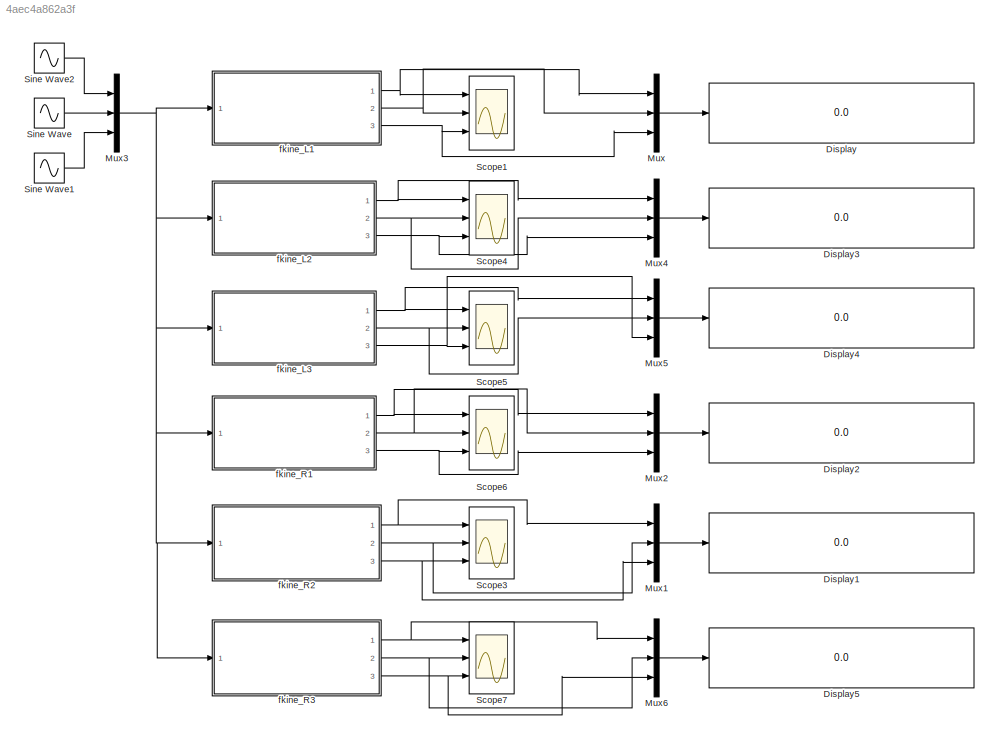
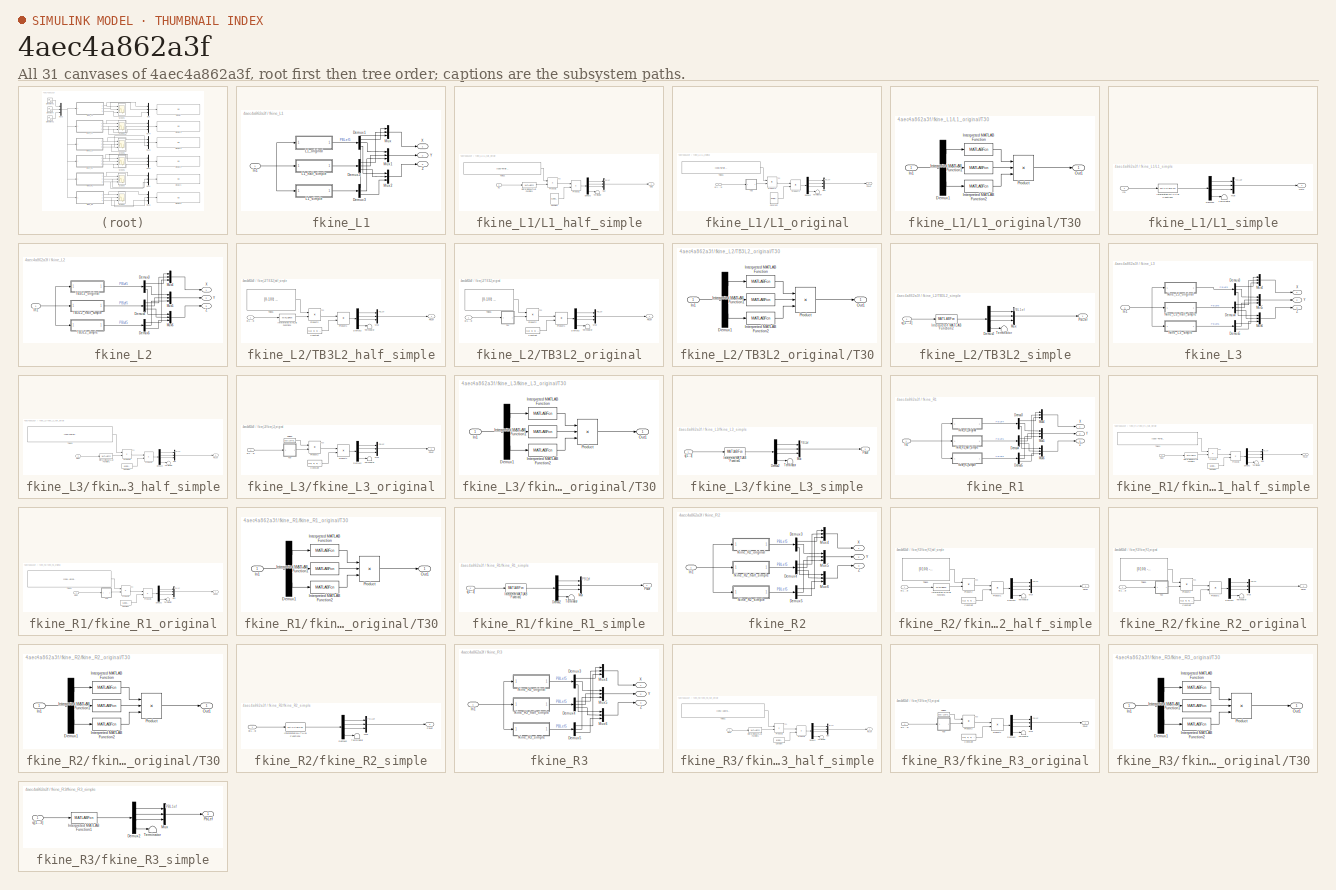
[diagram: thumbnail index - all 31 canvases of the model, root first then tree order]
MODEL slx_4aec4a862a3f
KIND model
CONFIG AbsTol = auto
CONFIG EnableMultiTasking = off
CONFIG FixedStep = 0.01
CONFIG InitFcn = runfirst
CONFIG MaxStep = auto
CONFIG MinStep = auto
CONFIG RelTol = 1e-3
CONFIG SampleTimeConstraint = Unconstrained
CONFIG Solver = FixedStepAuto
CONFIG SolverName = FixedStepAuto
CONFIG StartTime = 0.0
CONFIG StopTime = 30
BLOCK [Display] Display
  Decimation = 1
  Ports = [1]
BLOCK [Display] Display1
  Decimation = 1
  Ports = [1]
BLOCK [Display] Display2
  Decimation = 1
  Ports = [1]
BLOCK [Display] Display3
  Decimation = 1
  Ports = [1]
BLOCK [Display] Display4
  Decimation = 1
  Ports = [1]
BLOCK [Display] Display5
  Decimation = 1
  Ports = [1]
BLOCK [Mux] Mux
  DisplayOption = bar
  Inputs = 3
  Ports = [3, 1]
BLOCK [Mux] Mux1
  DisplayOption = bar
  Inputs = 3
  Ports = [3, 1]
BLOCK [Mux] Mux2
  DisplayOption = bar
  Inputs = 3
  Ports = [3, 1]
BLOCK [Mux] Mux3
  DisplayOption = bar
  Inputs = 3
  Ports = [3, 1]
BLOCK [Mux] Mux4
  DisplayOption = bar
  Inputs = 3
  Ports = [3, 1]
BLOCK [Mux] Mux5
  DisplayOption = bar
  Inputs = 3
  Ports = [3, 1]
BLOCK [Mux] Mux6
  DisplayOption = bar
  Inputs = 3
  Ports = [3, 1]
BLOCK [Scope] Scope1
  Floating = off
  NumInputPorts = 3
  Ports = [3]
  ScopeSpecificationString = Simulink.scopes.TimeScopeBlockCfg('CurrentConfiguration', extmgr.ConfigurationSet(extmgr.Configuration('Core','General UI',true,'FigureColor',[0.831372549019608 0.815686274509804 0.784313725490196]),extmgr.Configuration('Core','Source UI',true),extmgr.Configuration('Sources','WiredSimulink',true,'DataLoggingVariableName','ScopeData1','DataLoggingSaveFormat','Array','DataLoggingDecimation','1','Dat...<+5367ch>
BLOCK [Scope] Scope3
  Floating = off
  NumInputPorts = 3
  Ports = [3]
  ScopeSpecificationString = Simulink.scopes.TimeScopeBlockCfg('CurrentConfiguration', extmgr.ConfigurationSet(extmgr.Configuration('Core','General UI',true,'FigureColor',[0.831372549019608 0.815686274509804 0.784313725490196]),extmgr.Configuration('Core','Source UI',true),extmgr.Configuration('Sources','WiredSimulink',true,'DataLoggingVariableName','ScopeData2','DataLoggingSaveFormat','Array','DataLoggingDecimation','1','Dat...<+5367ch>
BLOCK [Scope] Scope4
  Floating = off
  NumInputPorts = 3
  Ports = [3]
  ScopeSpecificationString = Simulink.scopes.TimeScopeBlockCfg('CurrentConfiguration', extmgr.ConfigurationSet(extmgr.Configuration('Core','General UI',true,'FigureColor',[0.831372549019608 0.815686274509804 0.784313725490196]),extmgr.Configuration('Core','Source UI',true),extmgr.Configuration('Sources','WiredSimulink',true,'DataLoggingVariableName','ScopeData3','DataLoggingSaveFormat','Array','DataLoggingDecimation','1','Dat...<+5367ch>
BLOCK [Scope] Scope5
  Floating = off
  NumInputPorts = 3
  Ports = [3]
  ScopeSpecificationString = Simulink.scopes.TimeScopeBlockCfg('CurrentConfiguration', extmgr.ConfigurationSet(extmgr.Configuration('Core','General UI',true,'FigureColor',[0.831372549019608 0.815686274509804 0.784313725490196]),extmgr.Configuration('Core','Source UI',true),extmgr.Configuration('Sources','WiredSimulink',true,'DataLoggingVariableName','ScopeData4','DataLoggingSaveFormat','Array','DataLoggingDecimation','1','Dat...<+5368ch>
BLOCK [Scope] Scope6
  Floating = off
  NumInputPorts = 3
  Ports = [3]
  ScopeSpecificationString = Simulink.scopes.TimeScopeBlockCfg('CurrentConfiguration', extmgr.ConfigurationSet(extmgr.Configuration('Core','General UI',true,'FigureColor',[0.831372549019608 0.815686274509804 0.784313725490196]),extmgr.Configuration('Core','Source UI',true),extmgr.Configuration('Sources','WiredSimulink',true,'DataLoggingVariableName','ScopeData5','DataLoggingSaveFormat','Array','DataLoggingDecimation','1','Dat...<+5367ch>
BLOCK [Scope] Scope7
  Floating = off
  NumInputPorts = 3
  Ports = [3]
  ScopeSpecificationString = Simulink.scopes.TimeScopeBlockCfg('CurrentConfiguration', extmgr.ConfigurationSet(extmgr.Configuration('Core','General UI',true,'FigureColor',[0.831372549019608 0.815686274509804 0.784313725490196]),extmgr.Configuration('Core','Source UI',true),extmgr.Configuration('Sources','WiredSimulink',true,'DataLoggingVariableName','ScopeData6','DataLoggingSaveFormat','Array','DataLoggingDecimation','1','Dat...<+5367ch>
BLOCK [Sin] Sine Wave
  Amplitude = 10
  Ports = [0, 1]
  SampleTime = 0
BLOCK [Sin] Sine Wave1
  Amplitude = 2.4
  Frequency = 1.7
  Ports = [0, 1]
  SampleTime = 0
BLOCK [Sin] Sine Wave2
  Amplitude = 3
  Frequency = 3.5
  Ports = [0, 1]
  SampleTime = 0
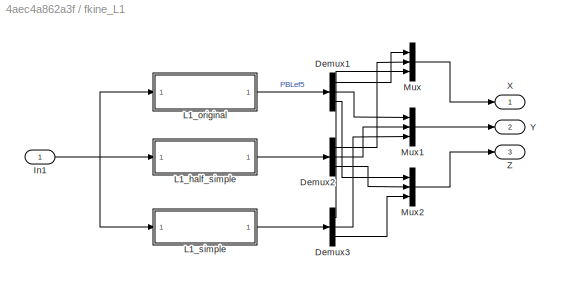
BLOCK [SubSystem] fkine_L1
  Ports = [1, 3]
  RequestExecContextInheritance = off
BLOCK [Demux] fkine_L1/Demux1
  Outputs = 3
  Ports = [1, 3]
BLOCK [Demux] fkine_L1/Demux2
  Outputs = 3
  Ports = [1, 3]
BLOCK [Demux] fkine_L1/Demux3
  Outputs = 3
  Ports = [1, 3]
BLOCK [Inport] fkine_L1/In1
BLOCK [SubSystem] fkine_L1/L1_half_simple
  Ports = [1, 1]
  RequestExecContextInheritance = off
BLOCK [Constant] fkine_L1/L1_half_simple/Constant
  Value = [L3; 0; 0; 1]
  VectorParams1D = off
BLOCK [Demux] fkine_L1/L1_half_simple/Demux2
  Ports = [1, 4]
BLOCK [Inport] fkine_L1/L1_half_simple/In1
BLOCK [MATLABFcn] fkine_L1/L1_half_simple/Interpreted MATLAB Function1
  MATLABFcn = [cos(u(2) - u(3))*cos(u(1)) sin(u(2) - u(3))*cos(u(1)) -sin(u(1)) cos(u(1))*(L1 + L2*cos(u(2))); cos(u(2) - u(3))*sin(u(1)) sin(u(2) - u(3))*sin(u(1)) cos(u(1)) sin(u(1))*(L1 + L2*cos(u(2))); sin(u(2) - u(3)) -cos(u(2) - u(3)) 0 L2*sin(u(2));0 0 0 1]  <repeated x6 — deduplicated; at blocks: Interpreted MATLAB Function1>
  Output1D = off
  Ports = [1, 1]
BLOCK [Mux] fkine_L1/L1_half_simple/Mux
  DisplayOption = bar
  Inputs = 3
  Ports = [3, 1]
BLOCK [Outport] fkine_L1/L1_half_simple/Out2
  VectorParamsAs1DForOutWhenUnconnected = off
BLOCK [Product] fkine_L1/L1_half_simple/Product1
  Multiplication = Matrix(*)
  Ports = [2, 1]
BLOCK [Product] fkine_L1/L1_half_simple/Product2
  Multiplication = Matrix(*)
  Ports = [2, 1]
BLOCK [Constant] fkine_L1/L1_half_simple/Tbleg1
  Value = [cos(45*pi/180) -sin(45*pi/180) 0 bL/2; sin(45*pi/180) cos(45*pi/180) 0 bWs/2; 0 0 1 0; 0 0 0 1]
  VectorParams1D = off
BLOCK [Terminator] fkine_L1/L1_half_simple/Terminator
BLOCK [SubSystem] fkine_L1/L1_original
  Ports = [1, 1]
  RequestExecContextInheritance = off
BLOCK [Constant] fkine_L1/L1_original/Constant
  Value = [L3; 0; 0; 1]
  VectorParams1D = off
BLOCK [Demux] fkine_L1/L1_original/Demux2
  Ports = [1, 4]
BLOCK [Mux] fkine_L1/L1_original/Mux
  DisplayOption = bar
  Inputs = 3
  Ports = [3, 1]
BLOCK [Outport] fkine_L1/L1_original/PbLef
  VectorParamsAs1DForOutWhenUnconnected = off
BLOCK [Product] fkine_L1/L1_original/Product1
  Multiplication = Matrix(*)
  Ports = [2, 1]
BLOCK [Product] fkine_L1/L1_original/Product2
  Multiplication = Matrix(*)
  Ports = [2, 1]
BLOCK [SubSystem] fkine_L1/L1_original/T30
  Ports = [1, 1]
  RequestExecContextInheritance = off
BLOCK [Demux] fkine_L1/L1_original/T30/Demux1
  Outputs = 3
  Ports = [1, 3]
BLOCK [Inport] fkine_L1/L1_original/T30/In1
BLOCK [MATLABFcn] fkine_L1/L1_original/T30/Interpreted MATLAB Function
  MATLABFcn = [cos(u) -sin(u) 0 0; sin(u) cos(u) 0 0; 0 0 1 d1; 0 0 0 1]
  Output1D = off
  Ports = [1, 1]
BLOCK [MATLABFcn] fkine_L1/L1_original/T30/Interpreted MATLAB Function1
  MATLABFcn = [cos(u) -sin(u) 0 L1; 0 0 -1 0; sin(u) cos(u) 0 -abs(d2); 0 0 0 1]
  Output1D = off
  Ports = [1, 1]
BLOCK [MATLABFcn] fkine_L1/L1_original/T30/Interpreted MATLAB Function2
  MATLABFcn = [cos(u) -sin(u) 0 L2; -sin(u) -cos(u) 0 0; 0 0 -1 0; 0 0 0 1]
  Output1D = off
  Ports = [1, 1]
BLOCK [Outport] fkine_L1/L1_original/T30/Out1
  VectorParamsAs1DForOutWhenUnconnected = off
BLOCK [Product] fkine_L1/L1_original/T30/Product
  Inputs = 3
  Multiplication = Matrix(*)
  Ports = [3, 1]
BLOCK [Constant] fkine_L1/L1_original/Tbleg1
  Value = [cos(45*pi/180) -sin(45*pi/180) 0 bL/2; sin(45*pi/180) cos(45*pi/180) 0 bWs/2; 0 0 1 0; 0 0 0 1]
  VectorParams1D = off
BLOCK [Terminator] fkine_L1/L1_original/Terminator
BLOCK [Inport] fkine_L1/L1_original/q[1...3]
BLOCK [SubSystem] fkine_L1/L1_simple
  Ports = [1, 1]
  RequestExecContextInheritance = off
BLOCK [Demux] fkine_L1/L1_simple/Demux2
  Ports = [1, 4]
BLOCK [Inport] fkine_L1/L1_simple/In1
BLOCK [MATLABFcn] fkine_L1/L1_simple/Interpreted MATLAB Function1
  MATLABFcn = [bL/2 + L3*((2^(1/2)*cos(u(2) - u(3))*cos(u(1)))/2 - (2^(1/2)*cos(u(2) - u(3))*sin(u(1)))/2) + (2^(1/2)*cos(u(1))*(L1 + L2*cos(u(2))))/2 - (2^(1/2)*sin(u(1))*(L1 + L2*cos(u(2))))/2; bWs/2 + L3*((2^(1/2)*cos(u(2) - u(3))*cos(u(1)))/2 + (2^(1/2)*cos(u(2) - u(3))*sin(u(1)))/2) + (2^(1/2)*cos(u(1))*(L1 + L2*cos(u(2))))/2 + (2^(1/2)*sin(u(1))*(L1 + L2*cos(u(2))))/2; L2*sin(u(2)) + L3*sin(u(2) - u(3));1...<+1ch>
  Output1D = off
  Ports = [1, 1]
BLOCK [Mux] fkine_L1/L1_simple/Mux
  DisplayOption = bar
  Inputs = 3
  Ports = [3, 1]
BLOCK [Outport] fkine_L1/L1_simple/Out2
  VectorParamsAs1DForOutWhenUnconnected = off
BLOCK [Terminator] fkine_L1/L1_simple/Terminator
BLOCK [Mux] fkine_L1/Mux
  DisplayOption = bar
  Inputs = 3
  Ports = [3, 1]
BLOCK [Mux] fkine_L1/Mux1
  DisplayOption = bar
  Inputs = 3
  Ports = [3, 1]
BLOCK [Mux] fkine_L1/Mux2
  DisplayOption = bar
  Inputs = 3
  Ports = [3, 1]
BLOCK [Outport] fkine_L1/X
  VectorParamsAs1DForOutWhenUnconnected = off
BLOCK [Outport] fkine_L1/Y
  Port = 2
  VectorParamsAs1DForOutWhenUnconnected = off
BLOCK [Outport] fkine_L1/Z
  Port = 3
  VectorParamsAs1DForOutWhenUnconnected = off
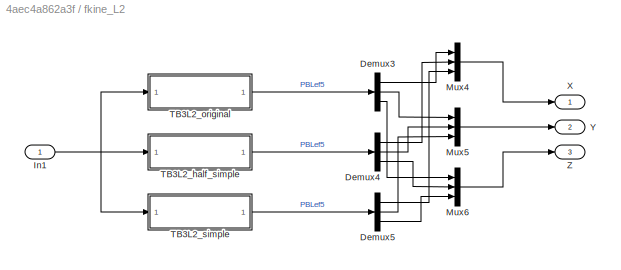
BLOCK [SubSystem] fkine_L2
  Ports = [1, 3]
  RequestExecContextInheritance = off
BLOCK [Demux] fkine_L2/Demux3
  Outputs = 3
  Ports = [1, 3]
BLOCK [Demux] fkine_L2/Demux4
  Outputs = 3
  Ports = [1, 3]
BLOCK [Demux] fkine_L2/Demux5
  Outputs = 3
  Ports = [1, 3]
BLOCK [Inport] fkine_L2/In1
BLOCK [Mux] fkine_L2/Mux4
  DisplayOption = bar
  Inputs = 3
  Ports = [3, 1]
BLOCK [Mux] fkine_L2/Mux5
  DisplayOption = bar
  Inputs = 3
  Ports = [3, 1]
BLOCK [Mux] fkine_L2/Mux6
  DisplayOption = bar
  Inputs = 3
  Ports = [3, 1]
BLOCK [SubSystem] fkine_L2/TB3L2_half_simple
  Ports = [1, 1]
  RequestExecContextInheritance = off
BLOCK [Constant] fkine_L2/TB3L2_half_simple/Constant
  Value = [L3; 0; 0; 1]
  VectorParams1D = off
BLOCK [Demux] fkine_L2/TB3L2_half_simple/Demux2
  Ports = [1, 4]
BLOCK [MATLABFcn] fkine_L2/TB3L2_half_simple/Interpreted MATLAB Function1
  Output1D = off
  Ports = [1, 1]
BLOCK [Mux] fkine_L2/TB3L2_half_simple/Mux
  DisplayOption = bar
  Inputs = 3
  Ports = [3, 1]
BLOCK [Outport] fkine_L2/TB3L2_half_simple/PbLef
  VectorParamsAs1DForOutWhenUnconnected = off
BLOCK [Product] fkine_L2/TB3L2_half_simple/Product1
  Multiplication = Matrix(*)
  Ports = [2, 1]
BLOCK [Product] fkine_L2/TB3L2_half_simple/Product2
  Multiplication = Matrix(*)
  Ports = [2, 1]
BLOCK [Constant] fkine_L2/TB3L2_half_simple/Tbleg1
  Value = [0 -1 0 0; 1 0 0 bWb/2; 0 0 1 0; 0 0 0 1]
  VectorParams1D = off
BLOCK [Terminator] fkine_L2/TB3L2_half_simple/Terminator
BLOCK [Inport] fkine_L2/TB3L2_half_simple/q[1...3]
BLOCK [SubSystem] fkine_L2/TB3L2_original
  Ports = [1, 1]
  RequestExecContextInheritance = off
BLOCK [Constant] fkine_L2/TB3L2_original/Constant
  Value = [L3; 0; 0; 1]
  VectorParams1D = off
BLOCK [Demux] fkine_L2/TB3L2_original/Demux2
  Ports = [1, 4]
BLOCK [Mux] fkine_L2/TB3L2_original/Mux
  DisplayOption = bar
  Inputs = 3
  Ports = [3, 1]
BLOCK [Outport] fkine_L2/TB3L2_original/PbLef
  VectorParamsAs1DForOutWhenUnconnected = off
BLOCK [Product] fkine_L2/TB3L2_original/Product1
  Multiplication = Matrix(*)
  Ports = [2, 1]
BLOCK [Product] fkine_L2/TB3L2_original/Product2
  Multiplication = Matrix(*)
  Ports = [2, 1]
BLOCK [SubSystem] fkine_L2/TB3L2_original/T30
  Ports = [1, 1]
  RequestExecContextInheritance = off
BLOCK [Demux] fkine_L2/TB3L2_original/T30/Demux1
  Outputs = 3
  Ports = [1, 3]
BLOCK [Inport] fkine_L2/TB3L2_original/T30/In1
BLOCK [MATLABFcn] fkine_L2/TB3L2_original/T30/Interpreted MATLAB Function
  MATLABFcn = [cos(u) -sin(u) 0 0; sin(u) cos(u) 0 0; 0 0 1 d1; 0 0 0 1]
  Output1D = off
  Ports = [1, 1]
BLOCK [MATLABFcn] fkine_L2/TB3L2_original/T30/Interpreted MATLAB Function1
  MATLABFcn = [cos(u) -sin(u) 0 L1; 0 0 -1 0; sin(u) cos(u) 0 -abs(d2); 0 0 0 1]
  Output1D = off
  Ports = [1, 1]
BLOCK [MATLABFcn] fkine_L2/TB3L2_original/T30/Interpreted MATLAB Function2
  MATLABFcn = [cos(u) -sin(u) 0 L2; -sin(u) -cos(u) 0 0; 0 0 -1 0; 0 0 0 1]
  Output1D = off
  Ports = [1, 1]
BLOCK [Outport] fkine_L2/TB3L2_original/T30/Out1
  VectorParamsAs1DForOutWhenUnconnected = off
BLOCK [Product] fkine_L2/TB3L2_original/T30/Product
  Inputs = 3
  Multiplication = Matrix(*)
  Ports = [3, 1]
BLOCK [Constant] fkine_L2/TB3L2_original/Tbleg1
  Value = [0 -1 0 0; 1 0 0 bWb/2; 0 0 1 0; 0 0 0 1]
  VectorParams1D = off
BLOCK [Terminator] fkine_L2/TB3L2_original/Terminator
BLOCK [Inport] fkine_L2/TB3L2_original/q[1...3]
BLOCK [SubSystem] fkine_L2/TB3L2_simple
  Ports = [1, 1]
  RequestExecContextInheritance = off
BLOCK [Demux] fkine_L2/TB3L2_simple/Demux2
  Ports = [1, 4]
BLOCK [MATLABFcn] fkine_L2/TB3L2_simple/Interpreted MATLAB Function2
  MATLABFcn = [-sin(u(1))*(L1 + L2*cos(u(2))) - L3*cos(u(2) - u(3))*sin(u(1)); bWb/2 + cos(u(1))*(L1 + L2*cos(u(2))) + L3*cos(u(2) - u(3))*cos(u(1));L2*sin(u(2))+L3*sin(u(2)-u(3));1]
  Output1D = off
  Ports = [1, 1]
BLOCK [Mux] fkine_L2/TB3L2_simple/Mux
  DisplayOption = bar
  Inputs = 3
  Ports = [3, 1]
BLOCK [Outport] fkine_L2/TB3L2_simple/PbLef
  VectorParamsAs1DForOutWhenUnconnected = off
BLOCK [Terminator] fkine_L2/TB3L2_simple/Terminator
BLOCK [Inport] fkine_L2/TB3L2_simple/q[1...3]
BLOCK [Outport] fkine_L2/X
  VectorParamsAs1DForOutWhenUnconnected = off
BLOCK [Outport] fkine_L2/Y
  Port = 2
  VectorParamsAs1DForOutWhenUnconnected = off
BLOCK [Outport] fkine_L2/Z
  Port = 3
  VectorParamsAs1DForOutWhenUnconnected = off
BLOCK [SubSystem] fkine_L3
  Ports = [1, 3]
  RequestExecContextInheritance = off
BLOCK [Demux] fkine_L3/Demux3
  Outputs = 3
  Ports = [1, 3]
BLOCK [Demux] fkine_L3/Demux4
  Outputs = 3
  Ports = [1, 3]
BLOCK [Demux] fkine_L3/Demux5
  Outputs = 3
  Ports = [1, 3]
BLOCK [Inport] fkine_L3/In1
BLOCK [Mux] fkine_L3/Mux4
  DisplayOption = bar
  Inputs = 3
  Ports = [3, 1]
BLOCK [Mux] fkine_L3/Mux5
  DisplayOption = bar
  Inputs = 3
  Ports = [3, 1]
BLOCK [Mux] fkine_L3/Mux6
  DisplayOption = bar
  Inputs = 3
  Ports = [3, 1]
BLOCK [Outport] fkine_L3/X
  VectorParamsAs1DForOutWhenUnconnected = off
BLOCK [Outport] fkine_L3/Y
  Port = 2
  VectorParamsAs1DForOutWhenUnconnected = off
BLOCK [Outport] fkine_L3/Z
  Port = 3
  VectorParamsAs1DForOutWhenUnconnected = off
BLOCK [SubSystem] fkine_L3/fkine_L3_half_simple
  Ports = [1, 1]
  RequestExecContextInheritance = off
BLOCK [Constant] fkine_L3/fkine_L3_half_simple/Constant
  Value = [L3; 0; 0; 1]
  VectorParams1D = off
BLOCK [Demux] fkine_L3/fkine_L3_half_simple/Demux2
  Ports = [1, 4]
BLOCK [MATLABFcn] fkine_L3/fkine_L3_half_simple/Interpreted MATLAB Function1
  Output1D = off
  Ports = [1, 1]
BLOCK [Mux] fkine_L3/fkine_L3_half_simple/Mux
  DisplayOption = bar
  Inputs = 3
  Ports = [3, 1]
BLOCK [Outport] fkine_L3/fkine_L3_half_simple/PbLef
  VectorParamsAs1DForOutWhenUnconnected = off
BLOCK [Product] fkine_L3/fkine_L3_half_simple/Product1
  Multiplication = Matrix(*)
  Ports = [2, 1]
BLOCK [Product] fkine_L3/fkine_L3_half_simple/Product2
  Multiplication = Matrix(*)
  Ports = [2, 1]
BLOCK [Constant] fkine_L3/fkine_L3_half_simple/Tbleg3
  Value = [cos(135*pi/180) -sin(135*pi/180) 0 -bL/2; sin(135*pi/180) cos(135*pi/180) 0 bWs/2; 0 0 1 0; 0 0 0 1]
  VectorParams1D = off
BLOCK [Terminator] fkine_L3/fkine_L3_half_simple/Terminator
BLOCK [Inport] fkine_L3/fkine_L3_half_simple/q[1...3]
BLOCK [SubSystem] fkine_L3/fkine_L3_original
  Ports = [1, 1]
  RequestExecContextInheritance = off
BLOCK [Constant] fkine_L3/fkine_L3_original/Constant
  Value = [L3; 0; 0; 1]
  VectorParams1D = off
BLOCK [Demux] fkine_L3/fkine_L3_original/Demux2
  Ports = [1, 4]
BLOCK [Mux] fkine_L3/fkine_L3_original/Mux
  DisplayOption = bar
  Inputs = 3
  Ports = [3, 1]
BLOCK [Outport] fkine_L3/fkine_L3_original/PbLef
  VectorParamsAs1DForOutWhenUnconnected = off
BLOCK [Product] fkine_L3/fkine_L3_original/Product1
  Multiplication = Matrix(*)
  Ports = [2, 1]
BLOCK [Product] fkine_L3/fkine_L3_original/Product2
  Multiplication = Matrix(*)
  Ports = [2, 1]
BLOCK [SubSystem] fkine_L3/fkine_L3_original/T30
  Ports = [1, 1]
  RequestExecContextInheritance = off
BLOCK [Demux] fkine_L3/fkine_L3_original/T30/Demux1
  Outputs = 3
  Ports = [1, 3]
BLOCK [Inport] fkine_L3/fkine_L3_original/T30/In1
BLOCK [MATLABFcn] fkine_L3/fkine_L3_original/T30/Interpreted MATLAB Function
  MATLABFcn = [cos(u) -sin(u) 0 0; sin(u) cos(u) 0 0; 0 0 1 d1; 0 0 0 1]
  Output1D = off
  Ports = [1, 1]
BLOCK [MATLABFcn] fkine_L3/fkine_L3_original/T30/Interpreted MATLAB Function1
  MATLABFcn = [cos(u) -sin(u) 0 L1; 0 0 -1 0; sin(u) cos(u) 0 -abs(d2); 0 0 0 1]
  Output1D = off
  Ports = [1, 1]
BLOCK [MATLABFcn] fkine_L3/fkine_L3_original/T30/Interpreted MATLAB Function2
  MATLABFcn = [cos(u) -sin(u) 0 L2; -sin(u) -cos(u) 0 0; 0 0 -1 0; 0 0 0 1]
  Output1D = off
  Ports = [1, 1]
BLOCK [Outport] fkine_L3/fkine_L3_original/T30/Out1
  VectorParamsAs1DForOutWhenUnconnected = off
BLOCK [Product] fkine_L3/fkine_L3_original/T30/Product
  Inputs = 3
  Multiplication = Matrix(*)
  Ports = [3, 1]
BLOCK [Constant] fkine_L3/fkine_L3_original/Tbleg3
  Value = [cos(135*pi/180) -sin(135*pi/180) 0 -bL/2; sin(135*pi/180) cos(135*pi/180) 0 bWs/2; 0 0 1 0; 0 0 0 1]
  VectorParams1D = off
BLOCK [Terminator] fkine_L3/fkine_L3_original/Terminator
BLOCK [Inport] fkine_L3/fkine_L3_original/q[1...3]
BLOCK [SubSystem] fkine_L3/fkine_L3_simple
  Ports = [1, 1]
  RequestExecContextInheritance = off
BLOCK [Demux] fkine_L3/fkine_L3_simple/Demux2
  Ports = [1, 4]
BLOCK [MATLABFcn] fkine_L3/fkine_L3_simple/Interpreted MATLAB Function1
  MATLABFcn = [-bL/2-L3*((2^(1/2)*cos(u(2)-u(3))*cos(u(1)))/2+(2^(1/2)*cos(u(2)-u(3))*sin(u(1)))/2)-(2^(1/2)*cos(u(1))*(L1+L2*cos(u(2))))/2 - (2^(1/2)*sin(u(1))*(L1 + L2*cos(u(2))))/2; bWs/2 + L3*((2^(1/2)*cos(u(2)-u(3))*cos(u(1)))/2-(2^(1/2)*cos(u(2)-u(3))*sin(u(1)))/2)+(2^(1/2)*cos(u(1))*(L1+L2*cos(u(2))))/2-(2^(1/2)*sin(u(1))*(L1+L2*cos(u(2))))/2; L2*sin(u(2))+L3*sin(u(2)-u(3)); 1]
  Output1D = off
  Ports = [1, 1]
BLOCK [Mux] fkine_L3/fkine_L3_simple/Mux
  DisplayOption = bar
  Inputs = 3
  Ports = [3, 1]
BLOCK [Outport] fkine_L3/fkine_L3_simple/PbLef
  VectorParamsAs1DForOutWhenUnconnected = off
BLOCK [Terminator] fkine_L3/fkine_L3_simple/Terminator
BLOCK [Inport] fkine_L3/fkine_L3_simple/q[1...3]
BLOCK [SubSystem] fkine_R1
  Ports = [1, 3]
  RequestExecContextInheritance = off
BLOCK [Demux] fkine_R1/Demux3
  Outputs = 3
  Ports = [1, 3]
BLOCK [Demux] fkine_R1/Demux4
  Outputs = 3
  Ports = [1, 3]
BLOCK [Demux] fkine_R1/Demux5
  Outputs = 3
  Ports = [1, 3]
BLOCK [Inport] fkine_R1/In1
BLOCK [Mux] fkine_R1/Mux4
  DisplayOption = bar
  Inputs = 3
  Ports = [3, 1]
BLOCK [Mux] fkine_R1/Mux5
  DisplayOption = bar
  Inputs = 3
  Ports = [3, 1]
BLOCK [Mux] fkine_R1/Mux6
  DisplayOption = bar
  Inputs = 3
  Ports = [3, 1]
BLOCK [Outport] fkine_R1/X
  VectorParamsAs1DForOutWhenUnconnected = off
BLOCK [Outport] fkine_R1/Y
  Port = 2
  VectorParamsAs1DForOutWhenUnconnected = off
BLOCK [Outport] fkine_R1/Z
  Port = 3
  VectorParamsAs1DForOutWhenUnconnected = off
BLOCK [SubSystem] fkine_R1/fkine_R1_half_simple
  Ports = [1, 1]
  RequestExecContextInheritance = off
BLOCK [Constant] fkine_R1/fkine_R1_half_simple/Constant
  Value = [L3; 0; 0; 1]
  VectorParams1D = off
BLOCK [Demux] fkine_R1/fkine_R1_half_simple/Demux2
  Ports = [1, 4]
BLOCK [MATLABFcn] fkine_R1/fkine_R1_half_simple/Interpreted MATLAB Function1
  Output1D = off
  Ports = [1, 1]
BLOCK [Mux] fkine_R1/fkine_R1_half_simple/Mux
  DisplayOption = bar
  Inputs = 3
  Ports = [3, 1]
BLOCK [Outport] fkine_R1/fkine_R1_half_simple/PbLef
  VectorParamsAs1DForOutWhenUnconnected = off
BLOCK [Product] fkine_R1/fkine_R1_half_simple/Product1
  Multiplication = Matrix(*)
  Ports = [2, 1]
BLOCK [Product] fkine_R1/fkine_R1_half_simple/Product2
  Multiplication = Matrix(*)
  Ports = [2, 1]
BLOCK [Constant] fkine_R1/fkine_R1_half_simple/Tbleg1
  Value = [cos(-45*pi/180) -sin(-45*pi/180) 0 bL/2; sin(-45*pi/180) cos(-45*pi/180) 0 -bWs/2; 0 0 1 0; 0 0 0 1]
  VectorParams1D = off
BLOCK [Terminator] fkine_R1/fkine_R1_half_simple/Terminator
BLOCK [Inport] fkine_R1/fkine_R1_half_simple/q[1...3]
BLOCK [SubSystem] fkine_R1/fkine_R1_original
  Ports = [1, 1]
  RequestExecContextInheritance = off
BLOCK [Constant] fkine_R1/fkine_R1_original/Constant
  Value = [L3; 0; 0; 1]
  VectorParams1D = off
BLOCK [Demux] fkine_R1/fkine_R1_original/Demux2
  Ports = [1, 4]
BLOCK [Mux] fkine_R1/fkine_R1_original/Mux
  DisplayOption = bar
  Inputs = 3
  Ports = [3, 1]
BLOCK [Outport] fkine_R1/fkine_R1_original/PbLef
  VectorParamsAs1DForOutWhenUnconnected = off
BLOCK [Product] fkine_R1/fkine_R1_original/Product1
  Multiplication = Matrix(*)
  Ports = [2, 1]
BLOCK [Product] fkine_R1/fkine_R1_original/Product2
  Multiplication = Matrix(*)
  Ports = [2, 1]
BLOCK [SubSystem] fkine_R1/fkine_R1_original/T30
  Ports = [1, 1]
  RequestExecContextInheritance = off
BLOCK [Demux] fkine_R1/fkine_R1_original/T30/Demux1
  Outputs = 3
  Ports = [1, 3]
BLOCK [Inport] fkine_R1/fkine_R1_original/T30/In1
BLOCK [MATLABFcn] fkine_R1/fkine_R1_original/T30/Interpreted MATLAB Function
  MATLABFcn = [cos(u) -sin(u) 0 0; sin(u) cos(u) 0 0; 0 0 1 d1; 0 0 0 1]
  Output1D = off
  Ports = [1, 1]
BLOCK [MATLABFcn] fkine_R1/fkine_R1_original/T30/Interpreted MATLAB Function1
  MATLABFcn = [cos(u) -sin(u) 0 L1; 0 0 -1 0; sin(u) cos(u) 0 -abs(d2); 0 0 0 1]
  Output1D = off
  Ports = [1, 1]
BLOCK [MATLABFcn] fkine_R1/fkine_R1_original/T30/Interpreted MATLAB Function2
  MATLABFcn = [cos(u) -sin(u) 0 L2; -sin(u) -cos(u) 0 0; 0 0 -1 0; 0 0 0 1]
  Output1D = off
  Ports = [1, 1]
BLOCK [Outport] fkine_R1/fkine_R1_original/T30/Out1
  VectorParamsAs1DForOutWhenUnconnected = off
BLOCK [Product] fkine_R1/fkine_R1_original/T30/Product
  Inputs = 3
  Multiplication = Matrix(*)
  Ports = [3, 1]
BLOCK [Constant] fkine_R1/fkine_R1_original/Tbleg1
  Value = [cos(-45*pi/180) -sin(-45*pi/180) 0 bL/2; sin(-45*pi/180) cos(-45*pi/180) 0 -bWs/2; 0 0 1 0; 0 0 0 1]
  VectorParams1D = off
BLOCK [Terminator] fkine_R1/fkine_R1_original/Terminator
BLOCK [Inport] fkine_R1/fkine_R1_original/q[1...3]
BLOCK [SubSystem] fkine_R1/fkine_R1_simple
  Ports = [1, 1]
  RequestExecContextInheritance = off
BLOCK [Demux] fkine_R1/fkine_R1_simple/Demux2
  Ports = [1, 4]
BLOCK [MATLABFcn] fkine_R1/fkine_R1_simple/Interpreted MATLAB Function1
  MATLABFcn = [bL/2 + L3*((2^(1/2)*cos(u(2) - u(3))*cos(u(1)))/2 + (2^(1/2)*cos(u(2) - u(3))*sin(u(1)))/2) + (2^(1/2)*cos(u(1))*(L1 + L2*cos(u(2))))/2 + (2^(1/2)*sin(u(1))*(L1 + L2*cos(u(2))))/2; (2^(1/2)*sin(u(1))*(L1 + L2*cos(u(2))))/2 - L3*((2^(1/2)*cos(u(2) - u(3))*cos(u(1)))/2 - (2^(1/2)*cos(u(2) - u(3))*sin(u(1)))/2) - (2^(1/2)*cos(u(1))*(L1 + L2*cos(u(2))))/2 - bWs/2;L2*sin(u(2)) + L3*sin(u(2) - u(3));1]
  Output1D = off
  Ports = [1, 1]
BLOCK [Mux] fkine_R1/fkine_R1_simple/Mux
  DisplayOption = bar
  Inputs = 3
  Ports = [3, 1]
BLOCK [Outport] fkine_R1/fkine_R1_simple/PbLef
  VectorParamsAs1DForOutWhenUnconnected = off
BLOCK [Terminator] fkine_R1/fkine_R1_simple/Terminator
BLOCK [Inport] fkine_R1/fkine_R1_simple/q[1...3]
BLOCK [SubSystem] fkine_R2
  Ports = [1, 3]
  RequestExecContextInheritance = off
BLOCK [Demux] fkine_R2/Demux3
  Outputs = 3
  Ports = [1, 3]
BLOCK [Demux] fkine_R2/Demux4
  Outputs = 3
  Ports = [1, 3]
BLOCK [Demux] fkine_R2/Demux5
  Outputs = 3
  Ports = [1, 3]
BLOCK [Inport] fkine_R2/In1
BLOCK [Mux] fkine_R2/Mux4
  DisplayOption = bar
  Inputs = 3
  Ports = [3, 1]
BLOCK [Mux] fkine_R2/Mux5
  DisplayOption = bar
  Inputs = 3
  Ports = [3, 1]
BLOCK [Mux] fkine_R2/Mux6
  DisplayOption = bar
  Inputs = 3
  Ports = [3, 1]
BLOCK [Outport] fkine_R2/X
  VectorParamsAs1DForOutWhenUnconnected = off
BLOCK [Outport] fkine_R2/Y
  Port = 2
  VectorParamsAs1DForOutWhenUnconnected = off
BLOCK [Outport] fkine_R2/Z
  Port = 3
  VectorParamsAs1DForOutWhenUnconnected = off
BLOCK [SubSystem] fkine_R2/fkine_R2_half_simple
  Ports = [1, 1]
  RequestExecContextInheritance = off
BLOCK [Constant] fkine_R2/fkine_R2_half_simple/Constant
  Value = [L3; 0; 0; 1]
  VectorParams1D = off
BLOCK [Demux] fkine_R2/fkine_R2_half_simple/Demux2
  Ports = [1, 4]
BLOCK [MATLABFcn] fkine_R2/fkine_R2_half_simple/Interpreted MATLAB Function1
  Output1D = off
  Ports = [1, 1]
BLOCK [Mux] fkine_R2/fkine_R2_half_simple/Mux
  DisplayOption = bar
  Inputs = 3
  Ports = [3, 1]
BLOCK [Outport] fkine_R2/fkine_R2_half_simple/PbLef
  VectorParamsAs1DForOutWhenUnconnected = off
BLOCK [Product] fkine_R2/fkine_R2_half_simple/Product1
  Multiplication = Matrix(*)
  Ports = [2, 1]
BLOCK [Product] fkine_R2/fkine_R2_half_simple/Product2
  Multiplication = Matrix(*)
  Ports = [2, 1]
BLOCK [Constant] fkine_R2/fkine_R2_half_simple/Tbleg1
  Value = [0 1 0 0; -1 0 0 -bWb/2; 0 0 1 0; 0 0 0 1]
  VectorParams1D = off
BLOCK [Terminator] fkine_R2/fkine_R2_half_simple/Terminator
BLOCK [Inport] fkine_R2/fkine_R2_half_simple/q[1...3]
BLOCK [SubSystem] fkine_R2/fkine_R2_original
  Ports = [1, 1]
  RequestExecContextInheritance = off
BLOCK [Constant] fkine_R2/fkine_R2_original/Constant
  Value = [L3; 0; 0; 1]
  VectorParams1D = off
BLOCK [Demux] fkine_R2/fkine_R2_original/Demux2
  Ports = [1, 4]
BLOCK [Mux] fkine_R2/fkine_R2_original/Mux
  DisplayOption = bar
  Inputs = 3
  Ports = [3, 1]
BLOCK [Outport] fkine_R2/fkine_R2_original/PbLef
  VectorParamsAs1DForOutWhenUnconnected = off
BLOCK [Product] fkine_R2/fkine_R2_original/Product1
  Multiplication = Matrix(*)
  Ports = [2, 1]
BLOCK [Product] fkine_R2/fkine_R2_original/Product2
  Multiplication = Matrix(*)
  Ports = [2, 1]
BLOCK [SubSystem] fkine_R2/fkine_R2_original/T30
  Ports = [1, 1]
  RequestExecContextInheritance = off
BLOCK [Demux] fkine_R2/fkine_R2_original/T30/Demux1
  Outputs = 3
  Ports = [1, 3]
BLOCK [Inport] fkine_R2/fkine_R2_original/T30/In1
BLOCK [MATLABFcn] fkine_R2/fkine_R2_original/T30/Interpreted MATLAB Function
  MATLABFcn = [cos(u) -sin(u) 0 0; sin(u) cos(u) 0 0; 0 0 1 d1; 0 0 0 1]
  Output1D = off
  Ports = [1, 1]
BLOCK [MATLABFcn] fkine_R2/fkine_R2_original/T30/Interpreted MATLAB Function1
  MATLABFcn = [cos(u) -sin(u) 0 L1; 0 0 -1 0; sin(u) cos(u) 0 -abs(d2); 0 0 0 1]
  Output1D = off
  Ports = [1, 1]
BLOCK [MATLABFcn] fkine_R2/fkine_R2_original/T30/Interpreted MATLAB Function2
  MATLABFcn = [cos(u) -sin(u) 0 L2; -sin(u) -cos(u) 0 0; 0 0 -1 0; 0 0 0 1]
  Output1D = off
  Ports = [1, 1]
BLOCK [Outport] fkine_R2/fkine_R2_original/T30/Out1
  VectorParamsAs1DForOutWhenUnconnected = off
BLOCK [Product] fkine_R2/fkine_R2_original/T30/Product
  Inputs = 3
  Multiplication = Matrix(*)
  Ports = [3, 1]
BLOCK [Constant] fkine_R2/fkine_R2_original/Tbleg1
  Value = [0 1 0 0; -1 0 0 -bWb/2; 0 0 1 0; 0 0 0 1]
  VectorParams1D = off
BLOCK [Terminator] fkine_R2/fkine_R2_original/Terminator
BLOCK [Inport] fkine_R2/fkine_R2_original/q[1...3]
BLOCK [SubSystem] fkine_R2/fkine_R2_simple
  Ports = [1, 1]
  RequestExecContextInheritance = off
BLOCK [Demux] fkine_R2/fkine_R2_simple/Demux2
  Ports = [1, 4]
BLOCK [MATLABFcn] fkine_R2/fkine_R2_simple/Interpreted MATLAB Function1
  MATLABFcn = [sin(u(1))*(L1+L2*cos(u(2)))+L3*cos(u(2)-u(3))*sin(u(1)); -bWb/2-cos(u(1))*(L1+L2*cos(u(2)))-L3*cos(u(2)-u(3))*cos(u(1)); L2*sin(u(2))+L3*sin(u(2)-u(3));1]
  Output1D = off
  Ports = [1, 1]
BLOCK [Mux] fkine_R2/fkine_R2_simple/Mux
  DisplayOption = bar
  Inputs = 3
  Ports = [3, 1]
BLOCK [Outport] fkine_R2/fkine_R2_simple/PbLef
  VectorParamsAs1DForOutWhenUnconnected = off
BLOCK [Terminator] fkine_R2/fkine_R2_simple/Terminator
BLOCK [Inport] fkine_R2/fkine_R2_simple/q[1...3]
BLOCK [SubSystem] fkine_R3
  Ports = [1, 3]
  RequestExecContextInheritance = off
BLOCK [Demux] fkine_R3/Demux3
  Outputs = 3
  Ports = [1, 3]
BLOCK [Demux] fkine_R3/Demux4
  Outputs = 3
  Ports = [1, 3]
BLOCK [Demux] fkine_R3/Demux5
  Outputs = 3
  Ports = [1, 3]
BLOCK [Inport] fkine_R3/In1
BLOCK [Mux] fkine_R3/Mux4
  DisplayOption = bar
  Inputs = 3
  Ports = [3, 1]
BLOCK [Mux] fkine_R3/Mux5
  DisplayOption = bar
  Inputs = 3
  Ports = [3, 1]
BLOCK [Mux] fkine_R3/Mux6
  DisplayOption = bar
  Inputs = 3
  Ports = [3, 1]
BLOCK [Outport] fkine_R3/X
  VectorParamsAs1DForOutWhenUnconnected = off
BLOCK [Outport] fkine_R3/Y
  Port = 2
  VectorParamsAs1DForOutWhenUnconnected = off
BLOCK [Outport] fkine_R3/Z
  Port = 3
  VectorParamsAs1DForOutWhenUnconnected = off
BLOCK [SubSystem] fkine_R3/fkine_R3_half_simple
  Ports = [1, 1]
  RequestExecContextInheritance = off
BLOCK [Constant] fkine_R3/fkine_R3_half_simple/Constant
  Value = [L3; 0; 0; 1]
  VectorParams1D = off
BLOCK [Demux] fkine_R3/fkine_R3_half_simple/Demux2
  Ports = [1, 4]
BLOCK [MATLABFcn] fkine_R3/fkine_R3_half_simple/Interpreted MATLAB Function1
  Output1D = off
  Ports = [1, 1]
BLOCK [Mux] fkine_R3/fkine_R3_half_simple/Mux
  DisplayOption = bar
  Inputs = 3
  Ports = [3, 1]
BLOCK [Outport] fkine_R3/fkine_R3_half_simple/PbLef
  VectorParamsAs1DForOutWhenUnconnected = off
BLOCK [Product] fkine_R3/fkine_R3_half_simple/Product1
  Multiplication = Matrix(*)
  Ports = [2, 1]
BLOCK [Product] fkine_R3/fkine_R3_half_simple/Product2
  Multiplication = Matrix(*)
  Ports = [2, 1]
BLOCK [Constant] fkine_R3/fkine_R3_half_simple/Tbleg1
  Value = [cos(-135*pi/180) -sin(-135*pi/180) 0 -bL/2; sin(-135*pi/180) cos(-135*pi/180) 0 -bWs/2; 0 0 1 0; 0 0 0 1]
  VectorParams1D = off
BLOCK [Terminator] fkine_R3/fkine_R3_half_simple/Terminator
BLOCK [Inport] fkine_R3/fkine_R3_half_simple/q[1...3]
BLOCK [SubSystem] fkine_R3/fkine_R3_original
  Ports = [1, 1]
  RequestExecContextInheritance = off
BLOCK [Constant] fkine_R3/fkine_R3_original/Constant
  Value = [L3; 0; 0; 1]
  VectorParams1D = off
BLOCK [Demux] fkine_R3/fkine_R3_original/Demux2
  Ports = [1, 4]
BLOCK [Mux] fkine_R3/fkine_R3_original/Mux
  DisplayOption = bar
  Inputs = 3
  Ports = [3, 1]
BLOCK [Outport] fkine_R3/fkine_R3_original/PbLef
  VectorParamsAs1DForOutWhenUnconnected = off
BLOCK [Product] fkine_R3/fkine_R3_original/Product1
  Multiplication = Matrix(*)
  Ports = [2, 1]
BLOCK [Product] fkine_R3/fkine_R3_original/Product2
  Multiplication = Matrix(*)
  Ports = [2, 1]
BLOCK [SubSystem] fkine_R3/fkine_R3_original/T30
  Ports = [1, 1]
  RequestExecContextInheritance = off
BLOCK [Demux] fkine_R3/fkine_R3_original/T30/Demux1
  Outputs = 3
  Ports = [1, 3]
BLOCK [Inport] fkine_R3/fkine_R3_original/T30/In1
BLOCK [MATLABFcn] fkine_R3/fkine_R3_original/T30/Interpreted MATLAB Function
  MATLABFcn = [cos(u) -sin(u) 0 0; sin(u) cos(u) 0 0; 0 0 1 d1; 0 0 0 1]
  Output1D = off
  Ports = [1, 1]
BLOCK [MATLABFcn] fkine_R3/fkine_R3_original/T30/Interpreted MATLAB Function1
  MATLABFcn = [cos(u) -sin(u) 0 L1; 0 0 -1 0; sin(u) cos(u) 0 -abs(d2); 0 0 0 1]
  Output1D = off
  Ports = [1, 1]
BLOCK [MATLABFcn] fkine_R3/fkine_R3_original/T30/Interpreted MATLAB Function2
  MATLABFcn = [cos(u) -sin(u) 0 L2; -sin(u) -cos(u) 0 0; 0 0 -1 0; 0 0 0 1]
  Output1D = off
  Ports = [1, 1]
BLOCK [Outport] fkine_R3/fkine_R3_original/T30/Out1
  VectorParamsAs1DForOutWhenUnconnected = off
BLOCK [Product] fkine_R3/fkine_R3_original/T30/Product
  Inputs = 3
  Multiplication = Matrix(*)
  Ports = [3, 1]
BLOCK [Constant] fkine_R3/fkine_R3_original/Tbleg1
  Value = [cos(-135*pi/180) -sin(-135*pi/180) 0 -bL/2; sin(-135*pi/180) cos(-135*pi/180) 0 -bWs/2; 0 0 1 0; 0 0 0 1]
  VectorParams1D = off
BLOCK [Terminator] fkine_R3/fkine_R3_original/Terminator
BLOCK [Inport] fkine_R3/fkine_R3_original/q[1...3]
BLOCK [SubSystem] fkine_R3/fkine_R3_simple
  Ports = [1, 1]
  RequestExecContextInheritance = off
BLOCK [Demux] fkine_R3/fkine_R3_simple/Demux2
  Ports = [1, 4]
BLOCK [MATLABFcn] fkine_R3/fkine_R3_simple/Interpreted MATLAB Function1
  MATLABFcn = [(2^(1/2)*sin(u(1))*(L1 + L2*cos(u(2))))/2 - L3*((2^(1/2)*cos(u(2) - u(3))*cos(u(1)))/2 - (2^(1/2)*cos(u(2) - u(3))*sin(u(1)))/2) - (2^(1/2)*cos(u(1))*(L1 + L2*cos(u(2))))/2 - bL/2; -bWs/2-L3*((2^(1/2)*cos(u(2)-u(3))*cos(u(1)))/2 + (2^(1/2)*cos(u(2) - u(3))*sin(u(1)))/2) - (2^(1/2)*cos(u(1))*(L1 + L2*cos(u(2))))/2 - (2^(1/2)*sin(u(1))*(L1 + L2*cos(u(2))))/2; L2*sin(u(2)) + L3*sin(u(2) - u(3)); 1]
  Output1D = off
  Ports = [1, 1]
BLOCK [Mux] fkine_R3/fkine_R3_simple/Mux
  DisplayOption = bar
  Inputs = 3
  Ports = [3, 1]
BLOCK [Outport] fkine_R3/fkine_R3_simple/PbLef
  VectorParamsAs1DForOutWhenUnconnected = off
BLOCK [Terminator] fkine_R3/fkine_R3_simple/Terminator
BLOCK [Inport] fkine_R3/fkine_R3_simple/q[1...3]
ANNOTATION fkine_L1/L1_half_simple: PBL1ef
ANNOTATION fkine_L1/L1_half_simple: Tb3
ANNOTATION fkine_L1/L1_original: PBL1ef
ANNOTATION fkine_L1/L1_original: Tb3
ANNOTATION fkine_L1/L1_simple: PBL1ef
ANNOTATION fkine_L2/TB3L2_half_simple: PBL1ef
ANNOTATION fkine_L2/TB3L2_half_simple: Tb3
ANNOTATION fkine_L2/TB3L2_original: PBL1ef
ANNOTATION fkine_L2/TB3L2_original: Tb3
ANNOTATION fkine_L2/TB3L2_simple: PBL1ef
ANNOTATION fkine_L3/fkine_L3_half_simple: PBL1ef
ANNOTATION fkine_L3/fkine_L3_half_simple: Tb3
ANNOTATION fkine_L3/fkine_L3_original: PBL1ef
ANNOTATION fkine_L3/fkine_L3_original: Tb3
ANNOTATION fkine_L3/fkine_L3_simple: PBL1ef
ANNOTATION fkine_R1/fkine_R1_half_simple: PBL1ef
ANNOTATION fkine_R1/fkine_R1_half_simple: Tb3
ANNOTATION fkine_R1/fkine_R1_original: PBL1ef
ANNOTATION fkine_R1/fkine_R1_original: Tb3
ANNOTATION fkine_R1/fkine_R1_simple: PBL1ef
ANNOTATION fkine_R2/fkine_R2_half_simple: PBL1ef
ANNOTATION fkine_R2/fkine_R2_half_simple: Tb3
ANNOTATION fkine_R2/fkine_R2_original: PBL1ef
ANNOTATION fkine_R2/fkine_R2_original: Tb3
ANNOTATION fkine_R2/fkine_R2_simple: PBL1ef
ANNOTATION fkine_R3/fkine_R3_half_simple: PBL1ef
ANNOTATION fkine_R3/fkine_R3_half_simple: Tb3
ANNOTATION fkine_R3/fkine_R3_original: PBL1ef
ANNOTATION fkine_R3/fkine_R3_original: Tb3
ANNOTATION fkine_R3/fkine_R3_simple: PBL1ef
LINE Mux1:1 -> Display1:1
LINE Mux2:1 -> Display2:1
NET Mux3:1 -> fkine_L1:1, fkine_L2:1, fkine_L3:1, fkine_R1:1, fkine_R2:1, fkine_R3:1
LINE Mux4:1 -> Display3:1
LINE Mux5:1 -> Display4:1
LINE Mux6:1 -> Display5:1
LINE Mux:1 -> Display:1
LINE Sine Wave1:1 -> Mux3:3
LINE Sine Wave2:1 -> Mux3:1
LINE Sine Wave:1 -> Mux3:2
LINE fkine_L1/Demux1:1 -> fkine_L1/Mux:1
LINE fkine_L1/Demux1:2 -> fkine_L1/Mux1:1
LINE fkine_L1/Demux1:3 -> fkine_L1/Mux2:1
LINE fkine_L1/Demux2:1 -> fkine_L1/Mux:2
LINE fkine_L1/Demux2:2 -> fkine_L1/Mux1:2
LINE fkine_L1/Demux2:3 -> fkine_L1/Mux2:2
LINE fkine_L1/Demux3:1 -> fkine_L1/Mux:3
LINE fkine_L1/Demux3:2 -> fkine_L1/Mux1:3
LINE fkine_L1/Demux3:3 -> fkine_L1/Mux2:3
NET fkine_L1/In1:1 -> fkine_L1/L1_half_simple:1, fkine_L1/L1_original:1, fkine_L1/L1_simple:1
LINE fkine_L1/L1_half_simple/Constant:1 -> fkine_L1/L1_half_simple/Product1:2
LINE fkine_L1/L1_half_simple/Demux2:1 -> fkine_L1/L1_half_simple/Mux:1
LINE fkine_L1/L1_half_simple/Demux2:2 -> fkine_L1/L1_half_simple/Mux:2
LINE fkine_L1/L1_half_simple/Demux2:3 -> fkine_L1/L1_half_simple/Mux:3
LINE fkine_L1/L1_half_simple/Demux2:4 -> fkine_L1/L1_half_simple/Terminator:1
LINE fkine_L1/L1_half_simple/In1:1 -> fkine_L1/L1_half_simple/Interpreted MATLAB Function1:1
LINE fkine_L1/L1_half_simple/Interpreted MATLAB Function1:1 -> fkine_L1/L1_half_simple/Product2:2
LINE fkine_L1/L1_half_simple/Mux:1 -> fkine_L1/L1_half_simple/Out2:1
LINE fkine_L1/L1_half_simple/Product1:1 -> fkine_L1/L1_half_simple/Demux2:1
LINE fkine_L1/L1_half_simple/Product2:1 -> fkine_L1/L1_half_simple/Product1:1
LINE fkine_L1/L1_half_simple/Tbleg1:1 -> fkine_L1/L1_half_simple/Product2:1
LINE fkine_L1/L1_half_simple:1 -> fkine_L1/Demux2:1
LINE fkine_L1/L1_original/Constant:1 -> fkine_L1/L1_original/Product1:2
LINE fkine_L1/L1_original/Demux2:1 -> fkine_L1/L1_original/Mux:1
LINE fkine_L1/L1_original/Demux2:2 -> fkine_L1/L1_original/Mux:2
LINE fkine_L1/L1_original/Demux2:3 -> fkine_L1/L1_original/Mux:3
LINE fkine_L1/L1_original/Demux2:4 -> fkine_L1/L1_original/Terminator:1
LINE fkine_L1/L1_original/Mux:1 -> fkine_L1/L1_original/PbLef:1
LINE fkine_L1/L1_original/Product1:1 -> fkine_L1/L1_original/Demux2:1
LINE fkine_L1/L1_original/Product2:1 -> fkine_L1/L1_original/Product1:1
LINE fkine_L1/L1_original/T30/Demux1:1 -> fkine_L1/L1_original/T30/Interpreted MATLAB Function:1
LINE fkine_L1/L1_original/T30/Demux1:2 -> fkine_L1/L1_original/T30/Interpreted MATLAB Function1:1
LINE fkine_L1/L1_original/T30/Demux1:3 -> fkine_L1/L1_original/T30/Interpreted MATLAB Function2:1
LINE fkine_L1/L1_original/T30/In1:1 -> fkine_L1/L1_original/T30/Demux1:1
LINE fkine_L1/L1_original/T30/Interpreted MATLAB Function1:1 -> fkine_L1/L1_original/T30/Product:2
LINE fkine_L1/L1_original/T30/Interpreted MATLAB Function2:1 -> fkine_L1/L1_original/T30/Product:3
LINE fkine_L1/L1_original/T30/Interpreted MATLAB Function:1 -> fkine_L1/L1_original/T30/Product:1
LINE fkine_L1/L1_original/T30/Product:1 -> fkine_L1/L1_original/T30/Out1:1
LINE fkine_L1/L1_original/T30:1 -> fkine_L1/L1_original/Product2:2
LINE fkine_L1/L1_original/Tbleg1:1 -> fkine_L1/L1_original/Product2:1
LINE fkine_L1/L1_original/q[1...3]:1 -> fkine_L1/L1_original/T30:1
LINE fkine_L1/L1_original:1 -> fkine_L1/Demux1:1
LINE fkine_L1/L1_simple/Demux2:1 -> fkine_L1/L1_simple/Mux:1
LINE fkine_L1/L1_simple/Demux2:2 -> fkine_L1/L1_simple/Mux:2
LINE fkine_L1/L1_simple/Demux2:3 -> fkine_L1/L1_simple/Mux:3
LINE fkine_L1/L1_simple/Demux2:4 -> fkine_L1/L1_simple/Terminator:1
LINE fkine_L1/L1_simple/In1:1 -> fkine_L1/L1_simple/Interpreted MATLAB Function1:1
LINE fkine_L1/L1_simple/Interpreted MATLAB Function1:1 -> fkine_L1/L1_simple/Demux2:1
LINE fkine_L1/L1_simple/Mux:1 -> fkine_L1/L1_simple/Out2:1
LINE fkine_L1/L1_simple:1 -> fkine_L1/Demux3:1
LINE fkine_L1/Mux1:1 -> fkine_L1/Y:1
LINE fkine_L1/Mux2:1 -> fkine_L1/Z:1
LINE fkine_L1/Mux:1 -> fkine_L1/X:1
NET fkine_L1:1 -> Mux:1, Scope1:1
NET fkine_L1:2 -> Mux:2, Scope1:2
NET fkine_L1:3 -> Mux:3, Scope1:3
LINE fkine_L2/Demux3:1 -> fkine_L2/Mux4:1
LINE fkine_L2/Demux3:2 -> fkine_L2/Mux5:1
LINE fkine_L2/Demux3:3 -> fkine_L2/Mux6:1
LINE fkine_L2/Demux4:1 -> fkine_L2/Mux4:2
LINE fkine_L2/Demux4:2 -> fkine_L2/Mux5:2
LINE fkine_L2/Demux4:3 -> fkine_L2/Mux6:2
LINE fkine_L2/Demux5:1 -> fkine_L2/Mux4:3
LINE fkine_L2/Demux5:2 -> fkine_L2/Mux5:3
LINE fkine_L2/Demux5:3 -> fkine_L2/Mux6:3
NET fkine_L2/In1:1 -> fkine_L2/TB3L2_half_simple:1, fkine_L2/TB3L2_original:1, fkine_L2/TB3L2_simple:1
LINE fkine_L2/Mux4:1 -> fkine_L2/X:1
LINE fkine_L2/Mux5:1 -> fkine_L2/Y:1
LINE fkine_L2/Mux6:1 -> fkine_L2/Z:1
LINE fkine_L2/TB3L2_half_simple/Constant:1 -> fkine_L2/TB3L2_half_simple/Product1:2
LINE fkine_L2/TB3L2_half_simple/Demux2:1 -> fkine_L2/TB3L2_half_simple/Mux:1
LINE fkine_L2/TB3L2_half_simple/Demux2:2 -> fkine_L2/TB3L2_half_simple/Mux:2
LINE fkine_L2/TB3L2_half_simple/Demux2:3 -> fkine_L2/TB3L2_half_simple/Mux:3
LINE fkine_L2/TB3L2_half_simple/Demux2:4 -> fkine_L2/TB3L2_half_simple/Terminator:1
LINE fkine_L2/TB3L2_half_simple/Interpreted MATLAB Function1:1 -> fkine_L2/TB3L2_half_simple/Product2:2
LINE fkine_L2/TB3L2_half_simple/Mux:1 -> fkine_L2/TB3L2_half_simple/PbLef:1
LINE fkine_L2/TB3L2_half_simple/Product1:1 -> fkine_L2/TB3L2_half_simple/Demux2:1
LINE fkine_L2/TB3L2_half_simple/Product2:1 -> fkine_L2/TB3L2_half_simple/Product1:1
LINE fkine_L2/TB3L2_half_simple/Tbleg1:1 -> fkine_L2/TB3L2_half_simple/Product2:1
LINE fkine_L2/TB3L2_half_simple/q[1...3]:1 -> fkine_L2/TB3L2_half_simple/Interpreted MATLAB Function1:1
LINE fkine_L2/TB3L2_half_simple:1 -> fkine_L2/Demux4:1
LINE fkine_L2/TB3L2_original/Constant:1 -> fkine_L2/TB3L2_original/Product1:2
LINE fkine_L2/TB3L2_original/Demux2:1 -> fkine_L2/TB3L2_original/Mux:1
LINE fkine_L2/TB3L2_original/Demux2:2 -> fkine_L2/TB3L2_original/Mux:2
LINE fkine_L2/TB3L2_original/Demux2:3 -> fkine_L2/TB3L2_original/Mux:3
LINE fkine_L2/TB3L2_original/Demux2:4 -> fkine_L2/TB3L2_original/Terminator:1
LINE fkine_L2/TB3L2_original/Mux:1 -> fkine_L2/TB3L2_original/PbLef:1
LINE fkine_L2/TB3L2_original/Product1:1 -> fkine_L2/TB3L2_original/Demux2:1
LINE fkine_L2/TB3L2_original/Product2:1 -> fkine_L2/TB3L2_original/Product1:1
LINE fkine_L2/TB3L2_original/T30/Demux1:1 -> fkine_L2/TB3L2_original/T30/Interpreted MATLAB Function:1
LINE fkine_L2/TB3L2_original/T30/Demux1:2 -> fkine_L2/TB3L2_original/T30/Interpreted MATLAB Function1:1
LINE fkine_L2/TB3L2_original/T30/Demux1:3 -> fkine_L2/TB3L2_original/T30/Interpreted MATLAB Function2:1
LINE fkine_L2/TB3L2_original/T30/In1:1 -> fkine_L2/TB3L2_original/T30/Demux1:1
LINE fkine_L2/TB3L2_original/T30/Interpreted MATLAB Function1:1 -> fkine_L2/TB3L2_original/T30/Product:2
LINE fkine_L2/TB3L2_original/T30/Interpreted MATLAB Function2:1 -> fkine_L2/TB3L2_original/T30/Product:3
LINE fkine_L2/TB3L2_original/T30/Interpreted MATLAB Function:1 -> fkine_L2/TB3L2_original/T30/Product:1
LINE fkine_L2/TB3L2_original/T30/Product:1 -> fkine_L2/TB3L2_original/T30/Out1:1
LINE fkine_L2/TB3L2_original/T30:1 -> fkine_L2/TB3L2_original/Product2:2
LINE fkine_L2/TB3L2_original/Tbleg1:1 -> fkine_L2/TB3L2_original/Product2:1
LINE fkine_L2/TB3L2_original/q[1...3]:1 -> fkine_L2/TB3L2_original/T30:1
LINE fkine_L2/TB3L2_original:1 -> fkine_L2/Demux3:1
LINE fkine_L2/TB3L2_simple/Demux2:1 -> fkine_L2/TB3L2_simple/Mux:1
LINE fkine_L2/TB3L2_simple/Demux2:2 -> fkine_L2/TB3L2_simple/Mux:2
LINE fkine_L2/TB3L2_simple/Demux2:3 -> fkine_L2/TB3L2_simple/Mux:3
LINE fkine_L2/TB3L2_simple/Demux2:4 -> fkine_L2/TB3L2_simple/Terminator:1
LINE fkine_L2/TB3L2_simple/Interpreted MATLAB Function2:1 -> fkine_L2/TB3L2_simple/Demux2:1
LINE fkine_L2/TB3L2_simple/Mux:1 -> fkine_L2/TB3L2_simple/PbLef:1
LINE fkine_L2/TB3L2_simple/q[1...3]:1 -> fkine_L2/TB3L2_simple/Interpreted MATLAB Function2:1
LINE fkine_L2/TB3L2_simple:1 -> fkine_L2/Demux5:1
NET fkine_L2:1 -> Mux4:1, Scope4:1
NET fkine_L2:2 -> Mux4:2, Scope4:2
NET fkine_L2:3 -> Mux4:3, Scope4:3
LINE fkine_L3/Demux3:1 -> fkine_L3/Mux4:1
LINE fkine_L3/Demux3:2 -> fkine_L3/Mux5:1
LINE fkine_L3/Demux3:3 -> fkine_L3/Mux6:1
LINE fkine_L3/Demux4:1 -> fkine_L3/Mux4:2
LINE fkine_L3/Demux4:2 -> fkine_L3/Mux5:2
LINE fkine_L3/Demux4:3 -> fkine_L3/Mux6:2
LINE fkine_L3/Demux5:1 -> fkine_L3/Mux4:3
LINE fkine_L3/Demux5:2 -> fkine_L3/Mux5:3
LINE fkine_L3/Demux5:3 -> fkine_L3/Mux6:3
NET fkine_L3/In1:1 -> fkine_L3/fkine_L3_half_simple:1, fkine_L3/fkine_L3_original:1, fkine_L3/fkine_L3_simple:1
LINE fkine_L3/Mux4:1 -> fkine_L3/X:1
LINE fkine_L3/Mux5:1 -> fkine_L3/Y:1
LINE fkine_L3/Mux6:1 -> fkine_L3/Z:1
LINE fkine_L3/fkine_L3_half_simple/Constant:1 -> fkine_L3/fkine_L3_half_simple/Product1:2
LINE fkine_L3/fkine_L3_half_simple/Demux2:1 -> fkine_L3/fkine_L3_half_simple/Mux:1
LINE fkine_L3/fkine_L3_half_simple/Demux2:2 -> fkine_L3/fkine_L3_half_simple/Mux:2
LINE fkine_L3/fkine_L3_half_simple/Demux2:3 -> fkine_L3/fkine_L3_half_simple/Mux:3
LINE fkine_L3/fkine_L3_half_simple/Demux2:4 -> fkine_L3/fkine_L3_half_simple/Terminator:1
LINE fkine_L3/fkine_L3_half_simple/Interpreted MATLAB Function1:1 -> fkine_L3/fkine_L3_half_simple/Product2:2
LINE fkine_L3/fkine_L3_half_simple/Mux:1 -> fkine_L3/fkine_L3_half_simple/PbLef:1
LINE fkine_L3/fkine_L3_half_simple/Product1:1 -> fkine_L3/fkine_L3_half_simple/Demux2:1
LINE fkine_L3/fkine_L3_half_simple/Product2:1 -> fkine_L3/fkine_L3_half_simple/Product1:1
LINE fkine_L3/fkine_L3_half_simple/Tbleg3:1 -> fkine_L3/fkine_L3_half_simple/Product2:1
LINE fkine_L3/fkine_L3_half_simple/q[1...3]:1 -> fkine_L3/fkine_L3_half_simple/Interpreted MATLAB Function1:1
LINE fkine_L3/fkine_L3_half_simple:1 -> fkine_L3/Demux4:1
LINE fkine_L3/fkine_L3_original/Constant:1 -> fkine_L3/fkine_L3_original/Product1:2
LINE fkine_L3/fkine_L3_original/Demux2:1 -> fkine_L3/fkine_L3_original/Mux:1
LINE fkine_L3/fkine_L3_original/Demux2:2 -> fkine_L3/fkine_L3_original/Mux:2
LINE fkine_L3/fkine_L3_original/Demux2:3 -> fkine_L3/fkine_L3_original/Mux:3
LINE fkine_L3/fkine_L3_original/Demux2:4 -> fkine_L3/fkine_L3_original/Terminator:1
LINE fkine_L3/fkine_L3_original/Mux:1 -> fkine_L3/fkine_L3_original/PbLef:1
LINE fkine_L3/fkine_L3_original/Product1:1 -> fkine_L3/fkine_L3_original/Demux2:1
LINE fkine_L3/fkine_L3_original/Product2:1 -> fkine_L3/fkine_L3_original/Product1:1
LINE fkine_L3/fkine_L3_original/T30/Demux1:1 -> fkine_L3/fkine_L3_original/T30/Interpreted MATLAB Function:1
LINE fkine_L3/fkine_L3_original/T30/Demux1:2 -> fkine_L3/fkine_L3_original/T30/Interpreted MATLAB Function1:1
LINE fkine_L3/fkine_L3_original/T30/Demux1:3 -> fkine_L3/fkine_L3_original/T30/Interpreted MATLAB Function2:1
LINE fkine_L3/fkine_L3_original/T30/In1:1 -> fkine_L3/fkine_L3_original/T30/Demux1:1
LINE fkine_L3/fkine_L3_original/T30/Interpreted MATLAB Function1:1 -> fkine_L3/fkine_L3_original/T30/Product:2
LINE fkine_L3/fkine_L3_original/T30/Interpreted MATLAB Function2:1 -> fkine_L3/fkine_L3_original/T30/Product:3
LINE fkine_L3/fkine_L3_original/T30/Interpreted MATLAB Function:1 -> fkine_L3/fkine_L3_original/T30/Product:1
LINE fkine_L3/fkine_L3_original/T30/Product:1 -> fkine_L3/fkine_L3_original/T30/Out1:1
LINE fkine_L3/fkine_L3_original/T30:1 -> fkine_L3/fkine_L3_original/Product2:2
LINE fkine_L3/fkine_L3_original/Tbleg3:1 -> fkine_L3/fkine_L3_original/Product2:1
LINE fkine_L3/fkine_L3_original/q[1...3]:1 -> fkine_L3/fkine_L3_original/T30:1
LINE fkine_L3/fkine_L3_original:1 -> fkine_L3/Demux3:1
LINE fkine_L3/fkine_L3_simple/Demux2:1 -> fkine_L3/fkine_L3_simple/Mux:1
LINE fkine_L3/fkine_L3_simple/Demux2:2 -> fkine_L3/fkine_L3_simple/Mux:2
LINE fkine_L3/fkine_L3_simple/Demux2:3 -> fkine_L3/fkine_L3_simple/Mux:3
LINE fkine_L3/fkine_L3_simple/Demux2:4 -> fkine_L3/fkine_L3_simple/Terminator:1
LINE fkine_L3/fkine_L3_simple/Interpreted MATLAB Function1:1 -> fkine_L3/fkine_L3_simple/Demux2:1
LINE fkine_L3/fkine_L3_simple/Mux:1 -> fkine_L3/fkine_L3_simple/PbLef:1
LINE fkine_L3/fkine_L3_simple/q[1...3]:1 -> fkine_L3/fkine_L3_simple/Interpreted MATLAB Function1:1
LINE fkine_L3/fkine_L3_simple:1 -> fkine_L3/Demux5:1
NET fkine_L3:1 -> Mux5:1, Scope5:1
NET fkine_L3:2 -> Mux5:2, Scope5:2
NET fkine_L3:3 -> Mux5:3, Scope5:3
LINE fkine_R1/Demux3:1 -> fkine_R1/Mux4:1
LINE fkine_R1/Demux3:2 -> fkine_R1/Mux5:1
LINE fkine_R1/Demux3:3 -> fkine_R1/Mux6:1
LINE fkine_R1/Demux4:1 -> fkine_R1/Mux4:2
LINE fkine_R1/Demux4:2 -> fkine_R1/Mux5:2
LINE fkine_R1/Demux4:3 -> fkine_R1/Mux6:2
LINE fkine_R1/Demux5:1 -> fkine_R1/Mux4:3
LINE fkine_R1/Demux5:2 -> fkine_R1/Mux5:3
LINE fkine_R1/Demux5:3 -> fkine_R1/Mux6:3
NET fkine_R1/In1:1 -> fkine_R1/fkine_R1_half_simple:1, fkine_R1/fkine_R1_original:1, fkine_R1/fkine_R1_simple:1
LINE fkine_R1/Mux4:1 -> fkine_R1/X:1
LINE fkine_R1/Mux5:1 -> fkine_R1/Y:1
LINE fkine_R1/Mux6:1 -> fkine_R1/Z:1
LINE fkine_R1/fkine_R1_half_simple/Constant:1 -> fkine_R1/fkine_R1_half_simple/Product1:2
LINE fkine_R1/fkine_R1_half_simple/Demux2:1 -> fkine_R1/fkine_R1_half_simple/Mux:1
LINE fkine_R1/fkine_R1_half_simple/Demux2:2 -> fkine_R1/fkine_R1_half_simple/Mux:2
LINE fkine_R1/fkine_R1_half_simple/Demux2:3 -> fkine_R1/fkine_R1_half_simple/Mux:3
LINE fkine_R1/fkine_R1_half_simple/Demux2:4 -> fkine_R1/fkine_R1_half_simple/Terminator:1
LINE fkine_R1/fkine_R1_half_simple/Interpreted MATLAB Function1:1 -> fkine_R1/fkine_R1_half_simple/Product2:2
LINE fkine_R1/fkine_R1_half_simple/Mux:1 -> fkine_R1/fkine_R1_half_simple/PbLef:1
LINE fkine_R1/fkine_R1_half_simple/Product1:1 -> fkine_R1/fkine_R1_half_simple/Demux2:1
LINE fkine_R1/fkine_R1_half_simple/Product2:1 -> fkine_R1/fkine_R1_half_simple/Product1:1
LINE fkine_R1/fkine_R1_half_simple/Tbleg1:1 -> fkine_R1/fkine_R1_half_simple/Product2:1
LINE fkine_R1/fkine_R1_half_simple/q[1...3]:1 -> fkine_R1/fkine_R1_half_simple/Interpreted MATLAB Function1:1
LINE fkine_R1/fkine_R1_half_simple:1 -> fkine_R1/Demux4:1
LINE fkine_R1/fkine_R1_original/Constant:1 -> fkine_R1/fkine_R1_original/Product1:2
LINE fkine_R1/fkine_R1_original/Demux2:1 -> fkine_R1/fkine_R1_original/Mux:1
LINE fkine_R1/fkine_R1_original/Demux2:2 -> fkine_R1/fkine_R1_original/Mux:2
LINE fkine_R1/fkine_R1_original/Demux2:3 -> fkine_R1/fkine_R1_original/Mux:3
LINE fkine_R1/fkine_R1_original/Demux2:4 -> fkine_R1/fkine_R1_original/Terminator:1
LINE fkine_R1/fkine_R1_original/Mux:1 -> fkine_R1/fkine_R1_original/PbLef:1
LINE fkine_R1/fkine_R1_original/Product1:1 -> fkine_R1/fkine_R1_original/Demux2:1
LINE fkine_R1/fkine_R1_original/Product2:1 -> fkine_R1/fkine_R1_original/Product1:1
LINE fkine_R1/fkine_R1_original/T30/Demux1:1 -> fkine_R1/fkine_R1_original/T30/Interpreted MATLAB Function:1
LINE fkine_R1/fkine_R1_original/T30/Demux1:2 -> fkine_R1/fkine_R1_original/T30/Interpreted MATLAB Function1:1
LINE fkine_R1/fkine_R1_original/T30/Demux1:3 -> fkine_R1/fkine_R1_original/T30/Interpreted MATLAB Function2:1
LINE fkine_R1/fkine_R1_original/T30/In1:1 -> fkine_R1/fkine_R1_original/T30/Demux1:1
LINE fkine_R1/fkine_R1_original/T30/Interpreted MATLAB Function1:1 -> fkine_R1/fkine_R1_original/T30/Product:2
LINE fkine_R1/fkine_R1_original/T30/Interpreted MATLAB Function2:1 -> fkine_R1/fkine_R1_original/T30/Product:3
LINE fkine_R1/fkine_R1_original/T30/Interpreted MATLAB Function:1 -> fkine_R1/fkine_R1_original/T30/Product:1
LINE fkine_R1/fkine_R1_original/T30/Product:1 -> fkine_R1/fkine_R1_original/T30/Out1:1
LINE fkine_R1/fkine_R1_original/T30:1 -> fkine_R1/fkine_R1_original/Product2:2
LINE fkine_R1/fkine_R1_original/Tbleg1:1 -> fkine_R1/fkine_R1_original/Product2:1
LINE fkine_R1/fkine_R1_original/q[1...3]:1 -> fkine_R1/fkine_R1_original/T30:1
LINE fkine_R1/fkine_R1_original:1 -> fkine_R1/Demux3:1
LINE fkine_R1/fkine_R1_simple/Demux2:1 -> fkine_R1/fkine_R1_simple/Mux:1
LINE fkine_R1/fkine_R1_simple/Demux2:2 -> fkine_R1/fkine_R1_simple/Mux:2
LINE fkine_R1/fkine_R1_simple/Demux2:3 -> fkine_R1/fkine_R1_simple/Mux:3
LINE fkine_R1/fkine_R1_simple/Demux2:4 -> fkine_R1/fkine_R1_simple/Terminator:1
LINE fkine_R1/fkine_R1_simple/Interpreted MATLAB Function1:1 -> fkine_R1/fkine_R1_simple/Demux2:1
LINE fkine_R1/fkine_R1_simple/Mux:1 -> fkine_R1/fkine_R1_simple/PbLef:1
LINE fkine_R1/fkine_R1_simple/q[1...3]:1 -> fkine_R1/fkine_R1_simple/Interpreted MATLAB Function1:1
LINE fkine_R1/fkine_R1_simple:1 -> fkine_R1/Demux5:1
NET fkine_R1:1 -> Mux2:1, Scope6:1
NET fkine_R1:2 -> Mux2:2, Scope6:2
NET fkine_R1:3 -> Mux2:3, Scope6:3
LINE fkine_R2/Demux3:1 -> fkine_R2/Mux4:1
LINE fkine_R2/Demux3:2 -> fkine_R2/Mux5:1
LINE fkine_R2/Demux3:3 -> fkine_R2/Mux6:1
LINE fkine_R2/Demux4:1 -> fkine_R2/Mux4:2
LINE fkine_R2/Demux4:2 -> fkine_R2/Mux5:2
LINE fkine_R2/Demux4:3 -> fkine_R2/Mux6:2
LINE fkine_R2/Demux5:1 -> fkine_R2/Mux4:3
LINE fkine_R2/Demux5:2 -> fkine_R2/Mux5:3
LINE fkine_R2/Demux5:3 -> fkine_R2/Mux6:3
NET fkine_R2/In1:1 -> fkine_R2/fkine_R2_half_simple:1, fkine_R2/fkine_R2_original:1, fkine_R2/fkine_R2_simple:1
LINE fkine_R2/Mux4:1 -> fkine_R2/X:1
LINE fkine_R2/Mux5:1 -> fkine_R2/Y:1
LINE fkine_R2/Mux6:1 -> fkine_R2/Z:1
LINE fkine_R2/fkine_R2_half_simple/Constant:1 -> fkine_R2/fkine_R2_half_simple/Product1:2
LINE fkine_R2/fkine_R2_half_simple/Demux2:1 -> fkine_R2/fkine_R2_half_simple/Mux:1
LINE fkine_R2/fkine_R2_half_simple/Demux2:2 -> fkine_R2/fkine_R2_half_simple/Mux:2
LINE fkine_R2/fkine_R2_half_simple/Demux2:3 -> fkine_R2/fkine_R2_half_simple/Mux:3
LINE fkine_R2/fkine_R2_half_simple/Demux2:4 -> fkine_R2/fkine_R2_half_simple/Terminator:1
LINE fkine_R2/fkine_R2_half_simple/Interpreted MATLAB Function1:1 -> fkine_R2/fkine_R2_half_simple/Product2:2
LINE fkine_R2/fkine_R2_half_simple/Mux:1 -> fkine_R2/fkine_R2_half_simple/PbLef:1
LINE fkine_R2/fkine_R2_half_simple/Product1:1 -> fkine_R2/fkine_R2_half_simple/Demux2:1
LINE fkine_R2/fkine_R2_half_simple/Product2:1 -> fkine_R2/fkine_R2_half_simple/Product1:1
LINE fkine_R2/fkine_R2_half_simple/Tbleg1:1 -> fkine_R2/fkine_R2_half_simple/Product2:1
LINE fkine_R2/fkine_R2_half_simple/q[1...3]:1 -> fkine_R2/fkine_R2_half_simple/Interpreted MATLAB Function1:1
LINE fkine_R2/fkine_R2_half_simple:1 -> fkine_R2/Demux4:1
LINE fkine_R2/fkine_R2_original/Constant:1 -> fkine_R2/fkine_R2_original/Product1:2
LINE fkine_R2/fkine_R2_original/Demux2:1 -> fkine_R2/fkine_R2_original/Mux:1
LINE fkine_R2/fkine_R2_original/Demux2:2 -> fkine_R2/fkine_R2_original/Mux:2
LINE fkine_R2/fkine_R2_original/Demux2:3 -> fkine_R2/fkine_R2_original/Mux:3
LINE fkine_R2/fkine_R2_original/Demux2:4 -> fkine_R2/fkine_R2_original/Terminator:1
LINE fkine_R2/fkine_R2_original/Mux:1 -> fkine_R2/fkine_R2_original/PbLef:1
LINE fkine_R2/fkine_R2_original/Product1:1 -> fkine_R2/fkine_R2_original/Demux2:1
LINE fkine_R2/fkine_R2_original/Product2:1 -> fkine_R2/fkine_R2_original/Product1:1
LINE fkine_R2/fkine_R2_original/T30/Demux1:1 -> fkine_R2/fkine_R2_original/T30/Interpreted MATLAB Function:1
LINE fkine_R2/fkine_R2_original/T30/Demux1:2 -> fkine_R2/fkine_R2_original/T30/Interpreted MATLAB Function1:1
LINE fkine_R2/fkine_R2_original/T30/Demux1:3 -> fkine_R2/fkine_R2_original/T30/Interpreted MATLAB Function2:1
LINE fkine_R2/fkine_R2_original/T30/In1:1 -> fkine_R2/fkine_R2_original/T30/Demux1:1
LINE fkine_R2/fkine_R2_original/T30/Interpreted MATLAB Function1:1 -> fkine_R2/fkine_R2_original/T30/Product:2
LINE fkine_R2/fkine_R2_original/T30/Interpreted MATLAB Function2:1 -> fkine_R2/fkine_R2_original/T30/Product:3
LINE fkine_R2/fkine_R2_original/T30/Interpreted MATLAB Function:1 -> fkine_R2/fkine_R2_original/T30/Product:1
LINE fkine_R2/fkine_R2_original/T30/Product:1 -> fkine_R2/fkine_R2_original/T30/Out1:1
LINE fkine_R2/fkine_R2_original/T30:1 -> fkine_R2/fkine_R2_original/Product2:2
LINE fkine_R2/fkine_R2_original/Tbleg1:1 -> fkine_R2/fkine_R2_original/Product2:1
LINE fkine_R2/fkine_R2_original/q[1...3]:1 -> fkine_R2/fkine_R2_original/T30:1
LINE fkine_R2/fkine_R2_original:1 -> fkine_R2/Demux3:1
LINE fkine_R2/fkine_R2_simple/Demux2:1 -> fkine_R2/fkine_R2_simple/Mux:1
LINE fkine_R2/fkine_R2_simple/Demux2:2 -> fkine_R2/fkine_R2_simple/Mux:2
LINE fkine_R2/fkine_R2_simple/Demux2:3 -> fkine_R2/fkine_R2_simple/Mux:3
LINE fkine_R2/fkine_R2_simple/Demux2:4 -> fkine_R2/fkine_R2_simple/Terminator:1
LINE fkine_R2/fkine_R2_simple/Interpreted MATLAB Function1:1 -> fkine_R2/fkine_R2_simple/Demux2:1
LINE fkine_R2/fkine_R2_simple/Mux:1 -> fkine_R2/fkine_R2_simple/PbLef:1
LINE fkine_R2/fkine_R2_simple/q[1...3]:1 -> fkine_R2/fkine_R2_simple/Interpreted MATLAB Function1:1
LINE fkine_R2/fkine_R2_simple:1 -> fkine_R2/Demux5:1
NET fkine_R2:1 -> Mux1:1, Scope3:1
NET fkine_R2:2 -> Mux1:2, Scope3:2
NET fkine_R2:3 -> Mux1:3, Scope3:3
LINE fkine_R3/Demux3:1 -> fkine_R3/Mux4:1
LINE fkine_R3/Demux3:2 -> fkine_R3/Mux5:1
LINE fkine_R3/Demux3:3 -> fkine_R3/Mux6:1
LINE fkine_R3/Demux4:1 -> fkine_R3/Mux4:2
LINE fkine_R3/Demux4:2 -> fkine_R3/Mux5:2
LINE fkine_R3/Demux4:3 -> fkine_R3/Mux6:2
LINE fkine_R3/Demux5:1 -> fkine_R3/Mux4:3
LINE fkine_R3/Demux5:2 -> fkine_R3/Mux5:3
LINE fkine_R3/Demux5:3 -> fkine_R3/Mux6:3
NET fkine_R3/In1:1 -> fkine_R3/fkine_R3_half_simple:1, fkine_R3/fkine_R3_original:1, fkine_R3/fkine_R3_simple:1
LINE fkine_R3/Mux4:1 -> fkine_R3/X:1
LINE fkine_R3/Mux5:1 -> fkine_R3/Y:1
LINE fkine_R3/Mux6:1 -> fkine_R3/Z:1
LINE fkine_R3/fkine_R3_half_simple/Constant:1 -> fkine_R3/fkine_R3_half_simple/Product1:2
LINE fkine_R3/fkine_R3_half_simple/Demux2:1 -> fkine_R3/fkine_R3_half_simple/Mux:1
LINE fkine_R3/fkine_R3_half_simple/Demux2:2 -> fkine_R3/fkine_R3_half_simple/Mux:2
LINE fkine_R3/fkine_R3_half_simple/Demux2:3 -> fkine_R3/fkine_R3_half_simple/Mux:3
LINE fkine_R3/fkine_R3_half_simple/Demux2:4 -> fkine_R3/fkine_R3_half_simple/Terminator:1
LINE fkine_R3/fkine_R3_half_simple/Interpreted MATLAB Function1:1 -> fkine_R3/fkine_R3_half_simple/Product2:2
LINE fkine_R3/fkine_R3_half_simple/Mux:1 -> fkine_R3/fkine_R3_half_simple/PbLef:1
LINE fkine_R3/fkine_R3_half_simple/Product1:1 -> fkine_R3/fkine_R3_half_simple/Demux2:1
LINE fkine_R3/fkine_R3_half_simple/Product2:1 -> fkine_R3/fkine_R3_half_simple/Product1:1
LINE fkine_R3/fkine_R3_half_simple/Tbleg1:1 -> fkine_R3/fkine_R3_half_simple/Product2:1
LINE fkine_R3/fkine_R3_half_simple/q[1...3]:1 -> fkine_R3/fkine_R3_half_simple/Interpreted MATLAB Function1:1
LINE fkine_R3/fkine_R3_half_simple:1 -> fkine_R3/Demux4:1
LINE fkine_R3/fkine_R3_original/Constant:1 -> fkine_R3/fkine_R3_original/Product1:2
LINE fkine_R3/fkine_R3_original/Demux2:1 -> fkine_R3/fkine_R3_original/Mux:1
LINE fkine_R3/fkine_R3_original/Demux2:2 -> fkine_R3/fkine_R3_original/Mux:2
LINE fkine_R3/fkine_R3_original/Demux2:3 -> fkine_R3/fkine_R3_original/Mux:3
LINE fkine_R3/fkine_R3_original/Demux2:4 -> fkine_R3/fkine_R3_original/Terminator:1
LINE fkine_R3/fkine_R3_original/Mux:1 -> fkine_R3/fkine_R3_original/PbLef:1
LINE fkine_R3/fkine_R3_original/Product1:1 -> fkine_R3/fkine_R3_original/Demux2:1
LINE fkine_R3/fkine_R3_original/Product2:1 -> fkine_R3/fkine_R3_original/Product1:1
LINE fkine_R3/fkine_R3_original/T30/Demux1:1 -> fkine_R3/fkine_R3_original/T30/Interpreted MATLAB Function:1
LINE fkine_R3/fkine_R3_original/T30/Demux1:2 -> fkine_R3/fkine_R3_original/T30/Interpreted MATLAB Function1:1
LINE fkine_R3/fkine_R3_original/T30/Demux1:3 -> fkine_R3/fkine_R3_original/T30/Interpreted MATLAB Function2:1
LINE fkine_R3/fkine_R3_original/T30/In1:1 -> fkine_R3/fkine_R3_original/T30/Demux1:1
LINE fkine_R3/fkine_R3_original/T30/Interpreted MATLAB Function1:1 -> fkine_R3/fkine_R3_original/T30/Product:2
LINE fkine_R3/fkine_R3_original/T30/Interpreted MATLAB Function2:1 -> fkine_R3/fkine_R3_original/T30/Product:3
LINE fkine_R3/fkine_R3_original/T30/Interpreted MATLAB Function:1 -> fkine_R3/fkine_R3_original/T30/Product:1
LINE fkine_R3/fkine_R3_original/T30/Product:1 -> fkine_R3/fkine_R3_original/T30/Out1:1
LINE fkine_R3/fkine_R3_original/T30:1 -> fkine_R3/fkine_R3_original/Product2:2
LINE fkine_R3/fkine_R3_original/Tbleg1:1 -> fkine_R3/fkine_R3_original/Product2:1
LINE fkine_R3/fkine_R3_original/q[1...3]:1 -> fkine_R3/fkine_R3_original/T30:1
LINE fkine_R3/fkine_R3_original:1 -> fkine_R3/Demux3:1
LINE fkine_R3/fkine_R3_simple/Demux2:1 -> fkine_R3/fkine_R3_simple/Mux:1
LINE fkine_R3/fkine_R3_simple/Demux2:2 -> fkine_R3/fkine_R3_simple/Mux:2
LINE fkine_R3/fkine_R3_simple/Demux2:3 -> fkine_R3/fkine_R3_simple/Mux:3
LINE fkine_R3/fkine_R3_simple/Demux2:4 -> fkine_R3/fkine_R3_simple/Terminator:1
LINE fkine_R3/fkine_R3_simple/Interpreted MATLAB Function1:1 -> fkine_R3/fkine_R3_simple/Demux2:1
LINE fkine_R3/fkine_R3_simple/Mux:1 -> fkine_R3/fkine_R3_simple/PbLef:1
LINE fkine_R3/fkine_R3_simple/q[1...3]:1 -> fkine_R3/fkine_R3_simple/Interpreted MATLAB Function1:1
LINE fkine_R3/fkine_R3_simple:1 -> fkine_R3/Demux5:1
NET fkine_R3:1 -> Mux6:1, Scope7:1
NET fkine_R3:2 -> Mux6:2, Scope7:2
NET fkine_R3:3 -> Mux6:3, Scope7:3
note: NET lines group one-source signal fan-out (src -> all destinations, sorted); 1:1 wires keep LINE
